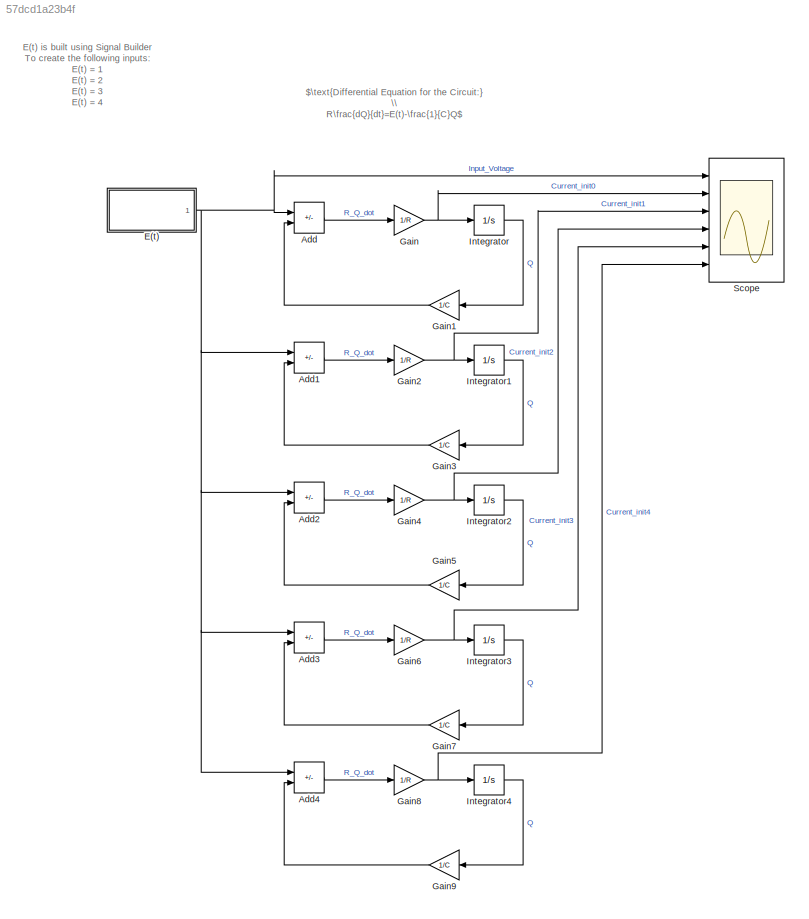
MODEL slx_57dcd1a23b4f
KIND model
CONFIG AbsTol = auto
CONFIG EnableMultiTasking = off
CONFIG FixedStep = auto
CONFIG MaxStep = auto
CONFIG MinStep = auto
CONFIG PreLoadFcn = clearvars\nload('Data.mat')
CONFIG RelTol = 1e-3
CONFIG SampleTimeConstraint = Unconstrained
CONFIG SolverName = VariableStepAuto
CONFIG StartTime = 0.0
CONFIG StopTime = 10
BLOCK [Sum] Add
  IconShape = rectangular
  Inputs = +-
  Ports = [2, 1]
BLOCK [Sum] Add1
  IconShape = rectangular
  Inputs = +-
  Ports = [2, 1]
BLOCK [Sum] Add2
  IconShape = rectangular
  Inputs = +-
  Ports = [2, 1]
BLOCK [Sum] Add3
  IconShape = rectangular
  Inputs = +-
  Ports = [2, 1]
BLOCK [Sum] Add4
  IconShape = rectangular
  Inputs = +-
  Ports = [2, 1]
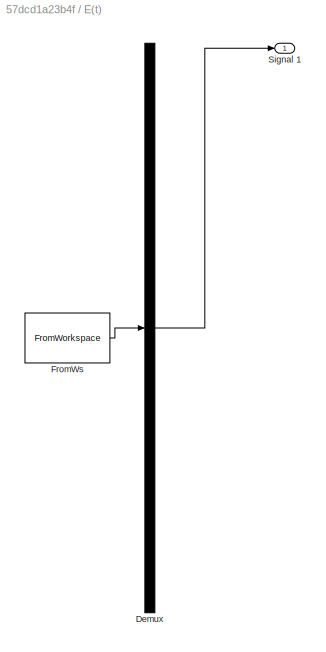
BLOCK [SubSystem] E(t)
  ClipboardFcn = sigbuilder_block('clipboard');
  CloseFcn = sigbuilder_block('close');
  ContinueFcn = sigbuilder_block('continue');
  CopyFcn = sigbuilder_block('copy');
  DeleteFcn = sigbuilder_block('delete');
  LoadFcn = sigbuilder_block('load');
  MaskHideContents = on
  ModelCloseFcn = sigbuilder_block('modelClose');
  NameChangeFcn = sigbuilder_block('namechange');
  OpenFcn = sigbuilder_block('open',[437.6 153 550.4 359.25 ]);
  PauseFcn = sigbuilder_block('pause');
  Ports = [0, 1]
  PreSaveFcn = sigbuilder_block('preSave');
  RequestExecContextInheritance = off
  StartFcn = sigbuilder_block('start');
  StopFcn = sigbuilder_block('stop');
  Tag = STV Subsys
BLOCK [Demux] E(t)/Demux
  DisplayOption = none
  Outputs = 1
  Ports = [1, 1]
  Tag = STV Demux
BLOCK [FromWorkspace] E(t)/FromWs
  OutputAfterFinalValue = Setting to zero
  Tag = STV FromWs
  VariableName = tuvar
BLOCK [Outport] E(t)/Signal 1
  Tag = STV Outport
BLOCK [Gain] Gain
  Gain = 1/R
BLOCK [Gain] Gain1
  Gain = 1/C
  NameLocation = top
BLOCK [Gain] Gain2
  Gain = 1/R
BLOCK [Gain] Gain3
  Gain = 1/C
  NameLocation = top
BLOCK [Gain] Gain4
  Gain = 1/R
BLOCK [Gain] Gain5
  Gain = 1/C
  NameLocation = top
BLOCK [Gain] Gain6
  Gain = 1/R
BLOCK [Gain] Gain7
  Gain = 1/C
  NameLocation = top
BLOCK [Gain] Gain8
  Gain = 1/R
BLOCK [Gain] Gain9
  Gain = 1/C
  NameLocation = top
BLOCK [Integrator] Integrator
  Ports = [1, 1]
BLOCK [Integrator] Integrator1
  InitialCondition = 1
  Ports = [1, 1]
BLOCK [Integrator] Integrator2
  InitialCondition = 2
  Ports = [1, 1]
BLOCK [Integrator] Integrator3
  InitialCondition = 3
  Ports = [1, 1]
BLOCK [Integrator] Integrator4
  InitialCondition = 4
  Ports = [1, 1]
BLOCK [Scope] Scope
  Floating = off
  NumInputPorts = 6
  Ports = [6]
  ScopeSpecificationString = Simulink.scopes.TimeScopeBlockCfg('CurrentConfiguration', extmgr.ConfigurationSet(extmgr.Configuration('Core','General UI',true),extmgr.Configuration('Core','Source UI',true),extmgr.Configuration('Sources','WiredSimulink',true),extmgr.Configuration('Visuals','Time Domain',true,'SerializedDisplays',{struct('MinYLimReal','-0.625','MaxYLimReal','5.625','YLabelReal','','MinYLimMag','0.00000','MaxYLimM...<+4923ch>
ANNOTATION (root): E(t) is built using Signal Builder To create the following inputs: E(t) = 1 E(t) = 2 E(t) = 3 E(t) = 4 E(t) = 5 5 Different Copies is made and Connected to the scope to demonstrate 5 different Initial conditions with 5 different E(t) inputs
ANNOTATION (root): $\text{Differential Equation for the Circuit:} \\ R\frac{dQ}{dt}=E(t)-\frac{1}{C}Q$
LINE Add1:1 -> Gain2:1
LINE Add2:1 -> Gain4:1
LINE Add3:1 -> Gain6:1
LINE Add4:1 -> Gain8:1
LINE Add:1 -> Gain:1
NET E(t):1 -> Add1:1, Add2:1, Add3:1, Add4:1, Add:1, Scope:1
LINE Gain1:1 -> Add:2
NET Gain2:1 -> Integrator1:1, Scope:3
LINE Gain3:1 -> Add1:2
NET Gain4:1 -> Integrator2:1, Scope:4
LINE Gain5:1 -> Add2:2
NET Gain6:1 -> Integrator3:1, Scope:5
LINE Gain7:1 -> Add3:2
NET Gain8:1 -> Integrator4:1, Scope:6
LINE Gain9:1 -> Add4:2
NET Gain:1 -> Integrator:1, Scope:2
LINE Integrator1:1 -> Gain3:1
LINE Integrator2:1 -> Gain5:1
LINE Integrator3:1 -> Gain7:1
LINE Integrator4:1 -> Gain9:1
LINE Integrator:1 -> Gain1:1
note: NET lines group one-source signal fan-out (src -> all destinations, sorted); 1:1 wires keep LINE
